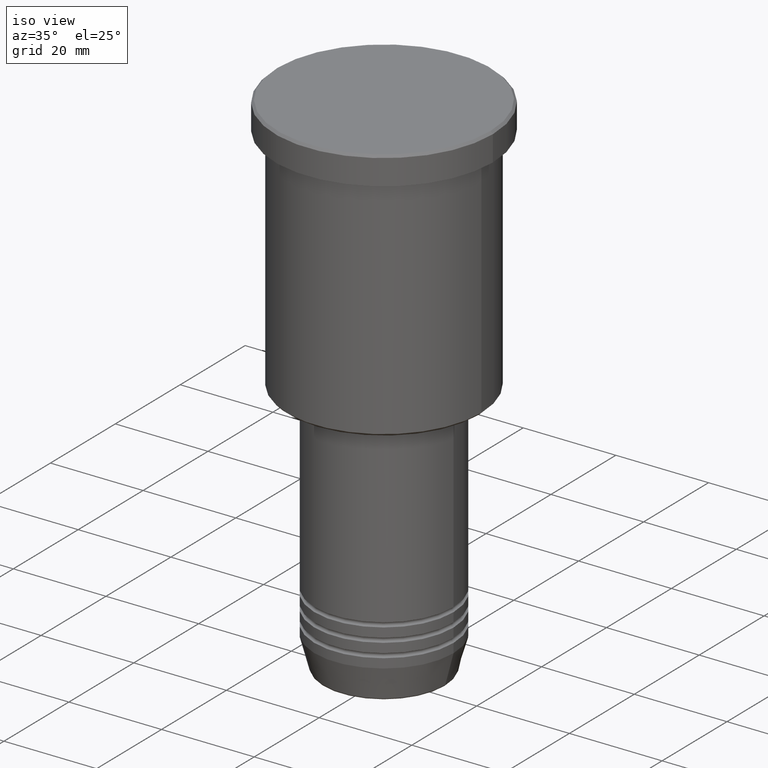
[diagram: clean part render]
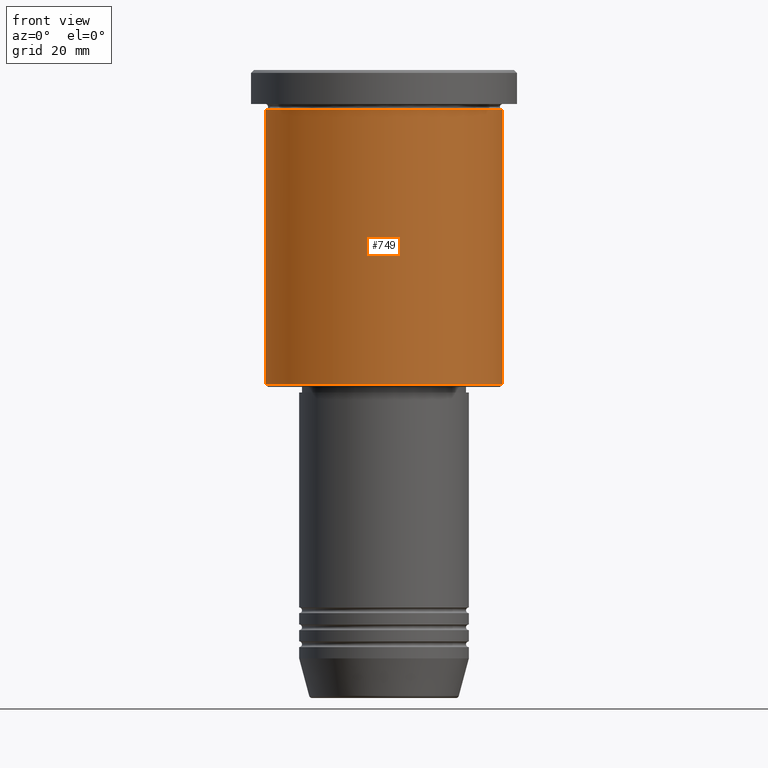
[diagram: tour spotlight — one face highlighted and labeled with its STEP entity id]
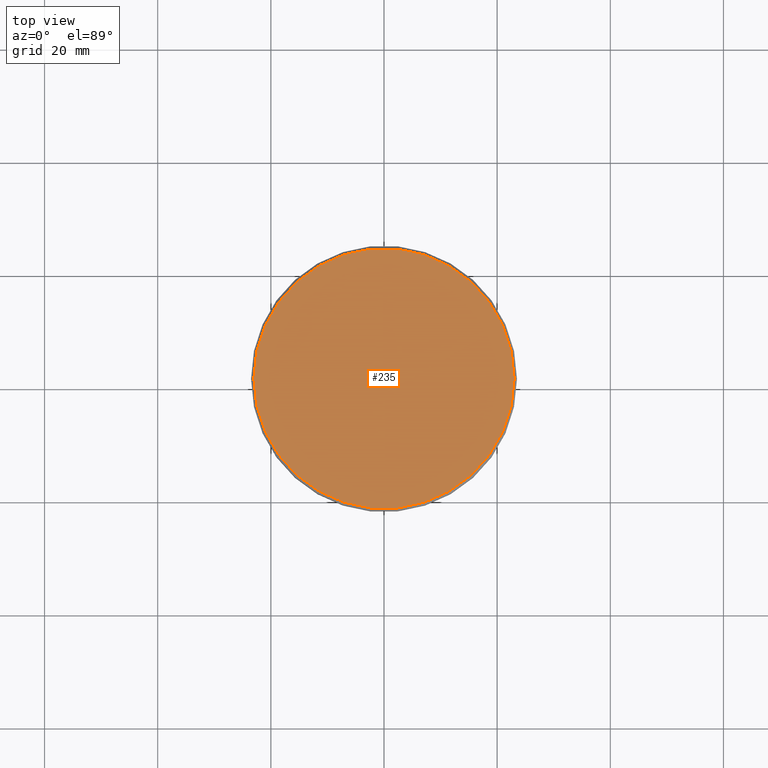
[diagram: tour spotlight — one face highlighted and labeled with its STEP entity id]
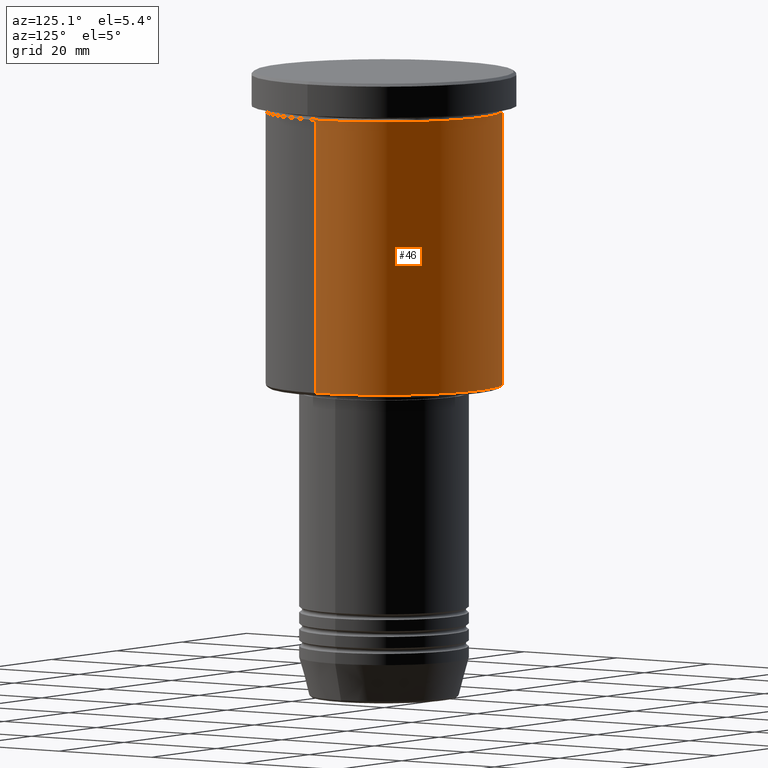
[diagram: tour spotlight — one face highlighted and labeled with its STEP entity id]
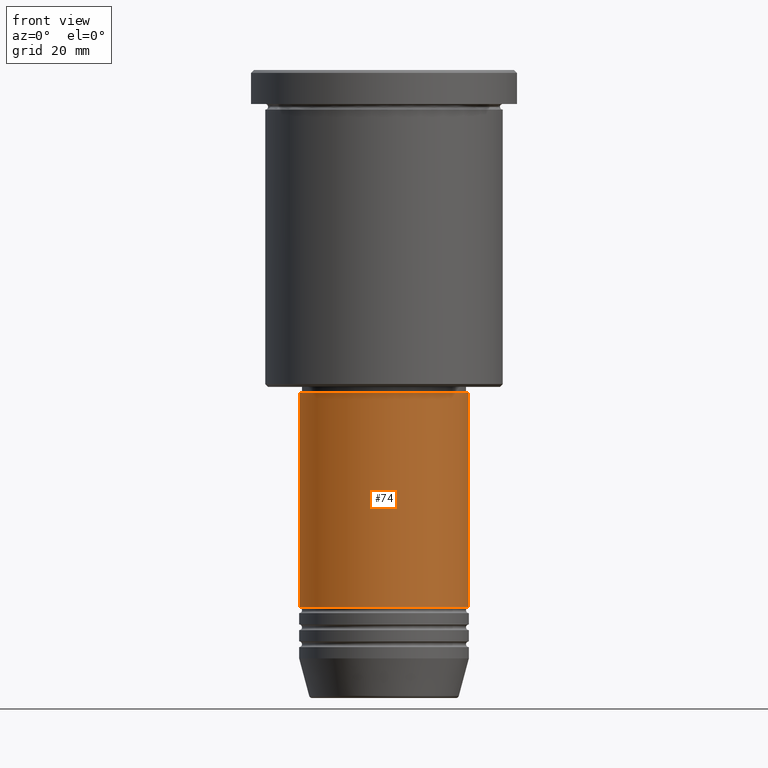
[diagram: tour spotlight — one face highlighted and labeled with its STEP entity id]
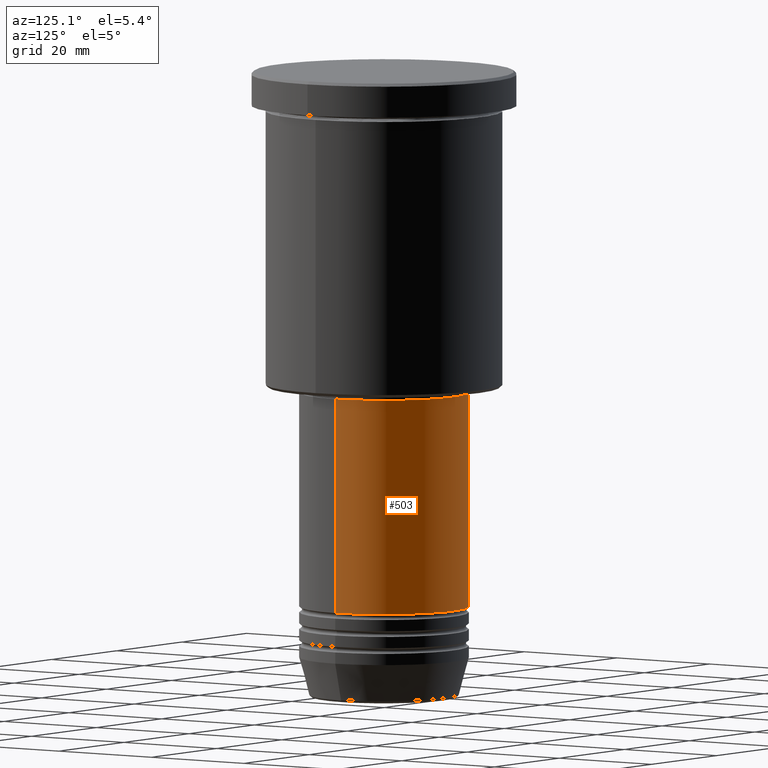
[diagram: tour spotlight — one face highlighted and labeled with its STEP entity id]
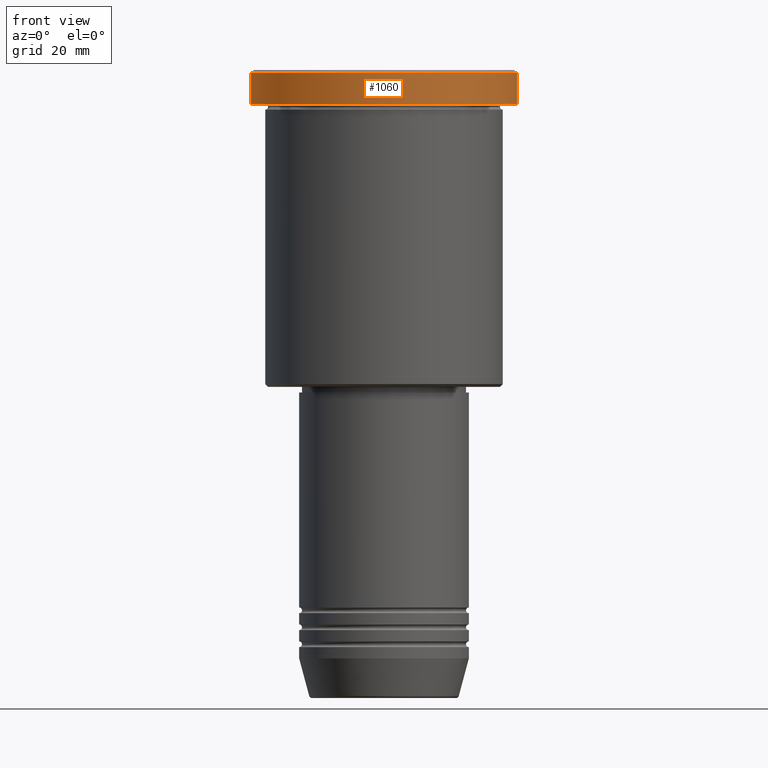
[diagram: tour spotlight — one face highlighted and labeled with its STEP entity id]
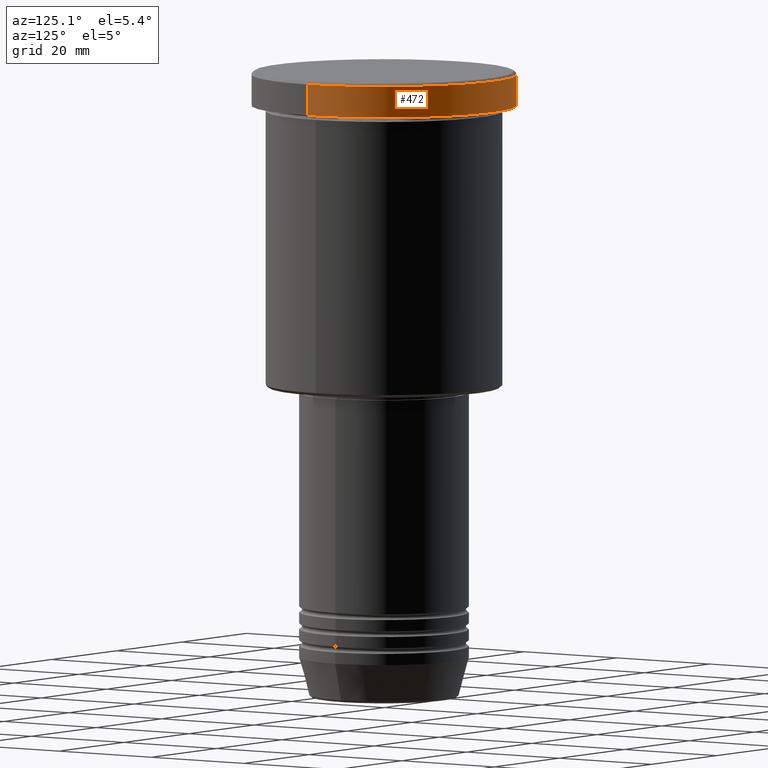
[diagram: tour spotlight — one face highlighted and labeled with its STEP entity id]
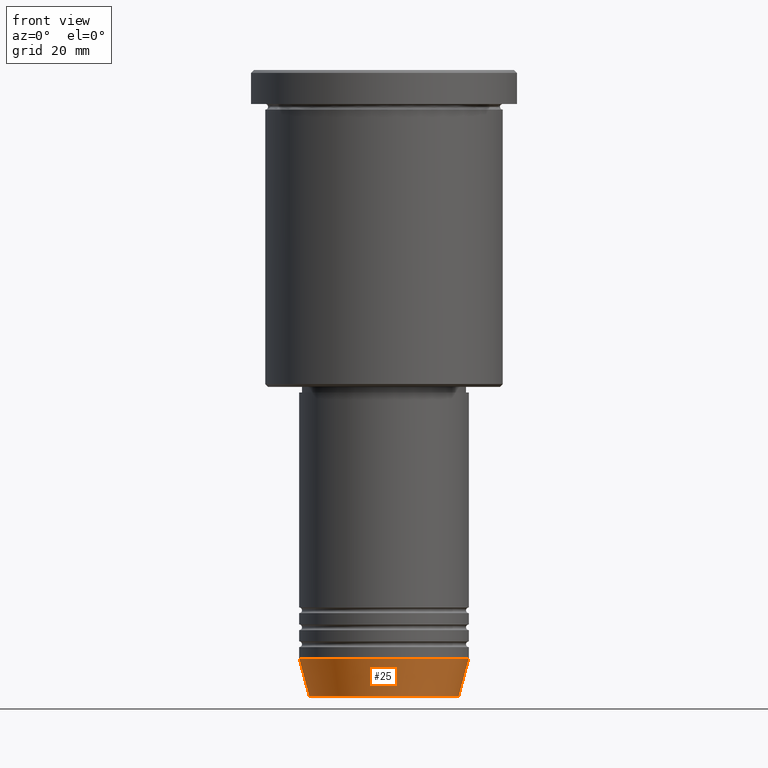
[diagram: tour spotlight — one face highlighted and labeled with its STEP entity id]
A machine part: a face-by-face anatomy tour. The part has 43 B-rep faces; the first image is the clean iso view, then the 8 largest visible faces are spotlighted one at a time (largest first), each with its STEP entity span.

Face 1 — front view, entity #749. In plain terms, the highlighted cylindrical surface (partial cylindrical patch) has radius 21 mm, axis along (-0, -0, 1).
Definition (entity closure, byte-faithful):
#26 = CARTESIAN_POINT ( 'NONE',  ( -21.00000000000000000, 2.571758278209441661E-15, -55.50000000000002132 ) ) ;
#73 = CARTESIAN_POINT ( 'NONE',  ( 21.00000000000000000, 0.000000000000000000, 0.000000000000000000 ) ) ;
#86 = DIRECTION ( 'NONE',  ( -0.000000000000000000, -0.000000000000000000, 1.000000000000000000 ) ) ;
#146 = FACE_OUTER_BOUND ( 'NONE', #989, .T. ) ;
#152 = CARTESIAN_POINT ( 'NONE',  ( 0.000000000000000000, 0.000000000000000000, 0.000000000000000000 ) ) ;
#160 = DIRECTION ( 'NONE',  ( -1.000000000000000000, 0.000000000000000000, 0.000000000000000000 ) ) ;
#260 = ORIENTED_EDGE ( 'NONE', *, *, #957, .F. ) ;
#268 = EDGE_CURVE ( 'NONE', #651, #865, #855, .T. ) ;
#279 = CARTESIAN_POINT ( 'NONE',  ( 21.00000000000000000, 0.000000000000000000, -6.999999999999994671 ) ) ;
#285 = AXIS2_PLACEMENT_3D ( 'NONE', #152, #1092, #814 ) ;
#344 = CARTESIAN_POINT ( 'NONE',  ( -21.00000000000000000, 2.571758278209441661E-15, -6.999999999999994671 ) ) ;
#381 = CARTESIAN_POINT ( 'NONE',  ( -21.00000000000000000, 2.571758278209441661E-15, 0.000000000000000000 ) ) ;
#386 = VERTEX_POINT ( 'NONE', #1015 ) ;
#394 = AXIS2_PLACEMENT_3D ( 'NONE', #827, #86, #460 ) ;
#449 = LINE ( 'NONE', #73, #985 ) ;
#450 = ORIENTED_EDGE ( 'NONE', *, *, #1024, .T. ) ;
#460 = DIRECTION ( 'NONE',  ( 1.000000000000000000, 0.000000000000000000, 0.000000000000000000 ) ) ;
#540 = CIRCLE ( 'NONE', #1066, 21.00000000000000000 ) ;
#541 = DIRECTION ( 'NONE',  ( -0.000000000000000000, -0.000000000000000000, 1.000000000000000000 ) ) ;
#614 = EDGE_CURVE ( 'NONE', #1129, #386, #540, .T. ) ;
#632 = ORIENTED_EDGE ( 'NONE', *, *, #614, .T. ) ;
#651 = VERTEX_POINT ( 'NONE', #344 ) ;
#660 = LINE ( 'NONE', #381, #775 ) ;
#703 = CYLINDRICAL_SURFACE ( 'NONE', #285, 21.00000000000000000 ) ;
#749 = ADVANCED_FACE ( 'NONE', ( #146 ), #703, .T. ) ;
#750 = DIRECTION ( 'NONE',  ( -0.000000000000000000, -0.000000000000000000, 1.000000000000000000 ) ) ;
#775 = VECTOR ( 'NONE', #750, 1000.000000000000000 ) ;
#810 = ORIENTED_EDGE ( 'NONE', *, *, #268, .F. ) ;
#814 = DIRECTION ( 'NONE',  ( 1.000000000000000000, 0.000000000000000000, 0.000000000000000000 ) ) ;
#827 = CARTESIAN_POINT ( 'NONE',  ( 0.000000000000000000, 0.000000000000000000, -6.999999999999994671 ) ) ;
#855 = CIRCLE ( 'NONE', #394, 21.00000000000000000 ) ;
#865 = VERTEX_POINT ( 'NONE', #279 ) ;
#913 = DIRECTION ( 'NONE',  ( -0.000000000000000000, -0.000000000000000000, 1.000000000000000000 ) ) ;
#957 = EDGE_CURVE ( 'NONE', #1129, #651, #660, .T. ) ;
#985 = VECTOR ( 'NONE', #913, 1000.000000000000000 ) ;
#989 = EDGE_LOOP ( 'NONE', ( #260, #632, #450, #810 ) ) ;
#1015 = CARTESIAN_POINT ( 'NONE',  ( 21.00000000000000000, 0.000000000000000000, -55.50000000000002132 ) ) ;
#1024 = EDGE_CURVE ( 'NONE', #386, #865, #449, .T. ) ;
#1066 = AXIS2_PLACEMENT_3D ( 'NONE', #1087, #541, #160 ) ;
#1087 = CARTESIAN_POINT ( 'NONE',  ( 0.000000000000000000, 0.000000000000000000, -55.50000000000002132 ) ) ;
#1092 = DIRECTION ( 'NONE',  ( -0.000000000000000000, -0.000000000000000000, 1.000000000000000000 ) ) ;
#1129 = VERTEX_POINT ( 'NONE', #26 ) ;

Face 2 — top view, entity #235. In plain terms, the highlighted planar face has unit normal (0, -0, 1).
Definition (entity closure, byte-faithful):
#60 = VERTEX_POINT ( 'NONE', #988 ) ;
#140 = EDGE_CURVE ( 'NONE', #186, #60, #832, .T. ) ;
#148 = AXIS2_PLACEMENT_3D ( 'NONE', #963, #870, #784 ) ;
#186 = VERTEX_POINT ( 'NONE', #484 ) ;
#188 = DIRECTION ( 'NONE',  ( 1.000000000000000000, 0.000000000000000000, 0.000000000000000000 ) ) ;
#202 = AXIS2_PLACEMENT_3D ( 'NONE', #657, #999, #188 ) ;
#227 = DIRECTION ( 'NONE',  ( 1.000000000000000000, 0.000000000000000000, 0.000000000000000000 ) ) ;
#235 = ADVANCED_FACE ( 'NONE', ( #562 ), #654, .T. ) ;
#337 = ORIENTED_EDGE ( 'NONE', *, *, #786, .T. ) ;
#484 = CARTESIAN_POINT ( 'NONE',  ( -23.00000000000001066, 0.000000000000000000, 0.000000000000000000 ) ) ;
#562 = FACE_OUTER_BOUND ( 'NONE', #785, .T. ) ;
#654 = PLANE ( 'NONE',  #202 ) ;
#657 = CARTESIAN_POINT ( 'NONE',  ( 0.000000000000000000, 0.000000000000000000, 0.000000000000000000 ) ) ;
#713 = ORIENTED_EDGE ( 'NONE', *, *, #140, .T. ) ;
#742 = AXIS2_PLACEMENT_3D ( 'NONE', #906, #1044, #227 ) ;
#780 = CIRCLE ( 'NONE', #742, 23.00000000000001066 ) ;
#784 = DIRECTION ( 'NONE',  ( 1.000000000000000000, 0.000000000000000000, 0.000000000000000000 ) ) ;
#785 = EDGE_LOOP ( 'NONE', ( #713, #337 ) ) ;
#786 = EDGE_CURVE ( 'NONE', #60, #186, #780, .T. ) ;
#832 = CIRCLE ( 'NONE', #148, 23.00000000000001066 ) ;
#870 = DIRECTION ( 'NONE',  ( -0.000000000000000000, -0.000000000000000000, 1.000000000000000000 ) ) ;
#906 = CARTESIAN_POINT ( 'NONE',  ( 0.000000000000000000, 0.000000000000000000, 0.000000000000000000 ) ) ;
#963 = CARTESIAN_POINT ( 'NONE',  ( 0.000000000000000000, 0.000000000000000000, 0.000000000000000000 ) ) ;
#988 = CARTESIAN_POINT ( 'NONE',  ( 23.00000000000001066, 2.847303808017596928E-15, 0.000000000000000000 ) ) ;
#999 = DIRECTION ( 'NONE',  ( 0.000000000000000000, -0.000000000000000000, 1.000000000000000000 ) ) ;
#1044 = DIRECTION ( 'NONE',  ( -0.000000000000000000, -0.000000000000000000, 1.000000000000000000 ) ) ;

Face 3 — auxiliary view, entity #46. In plain terms, the highlighted cylindrical surface (partial cylindrical patch) has radius 21 mm, axis along (-0, -0, 1).
Definition (entity closure, byte-faithful):
#26 = CARTESIAN_POINT ( 'NONE',  ( -21.00000000000000000, 2.571758278209441661E-15, -55.50000000000002132 ) ) ;
#46 = ADVANCED_FACE ( 'NONE', ( #943 ), #398, .T. ) ;
#73 = CARTESIAN_POINT ( 'NONE',  ( 21.00000000000000000, 0.000000000000000000, 0.000000000000000000 ) ) ;
#167 = CARTESIAN_POINT ( 'NONE',  ( 0.000000000000000000, 0.000000000000000000, -55.50000000000002132 ) ) ;
#175 = DIRECTION ( 'NONE',  ( -0.000000000000000000, -0.000000000000000000, 1.000000000000000000 ) ) ;
#201 = AXIS2_PLACEMENT_3D ( 'NONE', #167, #1093, #995 ) ;
#226 = ORIENTED_EDGE ( 'NONE', *, *, #1045, .T. ) ;
#231 = ORIENTED_EDGE ( 'NONE', *, *, #1024, .F. ) ;
#279 = CARTESIAN_POINT ( 'NONE',  ( 21.00000000000000000, 0.000000000000000000, -6.999999999999994671 ) ) ;
#344 = CARTESIAN_POINT ( 'NONE',  ( -21.00000000000000000, 2.571758278209441661E-15, -6.999999999999994671 ) ) ;
#363 = DIRECTION ( 'NONE',  ( 1.000000000000000000, 0.000000000000000000, 0.000000000000000000 ) ) ;
#381 = CARTESIAN_POINT ( 'NONE',  ( -21.00000000000000000, 2.571758278209441661E-15, 0.000000000000000000 ) ) ;
#386 = VERTEX_POINT ( 'NONE', #1015 ) ;
#392 = CIRCLE ( 'NONE', #889, 21.00000000000000000 ) ;
#398 = CYLINDRICAL_SURFACE ( 'NONE', #492, 21.00000000000000000 ) ;
#449 = LINE ( 'NONE', #73, #985 ) ;
#473 = CIRCLE ( 'NONE', #201, 21.00000000000000000 ) ;
#492 = AXIS2_PLACEMENT_3D ( 'NONE', #552, #175, #363 ) ;
#521 = EDGE_LOOP ( 'NONE', ( #226, #615, #1111, #231 ) ) ;
#552 = CARTESIAN_POINT ( 'NONE',  ( 0.000000000000000000, 0.000000000000000000, 0.000000000000000000 ) ) ;
#615 = ORIENTED_EDGE ( 'NONE', *, *, #957, .T. ) ;
#651 = VERTEX_POINT ( 'NONE', #344 ) ;
#660 = LINE ( 'NONE', #381, #775 ) ;
#750 = DIRECTION ( 'NONE',  ( -0.000000000000000000, -0.000000000000000000, 1.000000000000000000 ) ) ;
#775 = VECTOR ( 'NONE', #750, 1000.000000000000000 ) ;
#859 = DIRECTION ( 'NONE',  ( 1.000000000000000000, 0.000000000000000000, 0.000000000000000000 ) ) ;
#865 = VERTEX_POINT ( 'NONE', #279 ) ;
#889 = AXIS2_PLACEMENT_3D ( 'NONE', #1030, #1110, #859 ) ;
#913 = DIRECTION ( 'NONE',  ( -0.000000000000000000, -0.000000000000000000, 1.000000000000000000 ) ) ;
#943 = FACE_OUTER_BOUND ( 'NONE', #521, .T. ) ;
#957 = EDGE_CURVE ( 'NONE', #1129, #651, #660, .T. ) ;
#985 = VECTOR ( 'NONE', #913, 1000.000000000000000 ) ;
#995 = DIRECTION ( 'NONE',  ( -1.000000000000000000, 0.000000000000000000, 0.000000000000000000 ) ) ;
#1015 = CARTESIAN_POINT ( 'NONE',  ( 21.00000000000000000, 0.000000000000000000, -55.50000000000002132 ) ) ;
#1024 = EDGE_CURVE ( 'NONE', #386, #865, #449, .T. ) ;
#1030 = CARTESIAN_POINT ( 'NONE',  ( 0.000000000000000000, 0.000000000000000000, -6.999999999999994671 ) ) ;
#1045 = EDGE_CURVE ( 'NONE', #386, #1129, #473, .T. ) ;
#1093 = DIRECTION ( 'NONE',  ( -0.000000000000000000, -0.000000000000000000, 1.000000000000000000 ) ) ;
#1110 = DIRECTION ( 'NONE',  ( -0.000000000000000000, -0.000000000000000000, 1.000000000000000000 ) ) ;
#1111 = ORIENTED_EDGE ( 'NONE', *, *, #1131, .F. ) ;
#1129 = VERTEX_POINT ( 'NONE', #26 ) ;
#1131 = EDGE_CURVE ( 'NONE', #865, #651, #392, .T. ) ;

Face 4 — front view, entity #74. In plain terms, the highlighted cylindrical surface (partial cylindrical patch) has radius 15 mm, axis along (-0, -0, 1).
Definition (entity closure, byte-faithful):
#7 = EDGE_CURVE ( 'NONE', #766, #1078, #1115, .T. ) ;
#74 = ADVANCED_FACE ( 'NONE', ( #809 ), #745, .T. ) ;
#82 = VERTEX_POINT ( 'NONE', #1159 ) ;
#124 = EDGE_CURVE ( 'NONE', #163, #82, #177, .T. ) ;
#162 = DIRECTION ( 'NONE',  ( -0.000000000000000000, -0.000000000000000000, 1.000000000000000000 ) ) ;
#163 = VERTEX_POINT ( 'NONE', #440 ) ;
#177 = LINE ( 'NONE', #243, #1039 ) ;
#181 = CARTESIAN_POINT ( 'NONE',  ( 15.00000000000000000, 0.000000000000000000, -57.00000000000000000 ) ) ;
#243 = CARTESIAN_POINT ( 'NONE',  ( -15.00000000000000000, 1.836970198721029589E-15, 0.000000000000000000 ) ) ;
#294 = CARTESIAN_POINT ( 'NONE',  ( 15.00000000000000000, 0.000000000000000000, 0.000000000000000000 ) ) ;
#371 = ORIENTED_EDGE ( 'NONE', *, *, #468, .F. ) ;
#377 = EDGE_LOOP ( 'NONE', ( #802, #405, #617, #371 ) ) ;
#405 = ORIENTED_EDGE ( 'NONE', *, *, #692, .T. ) ;
#440 = CARTESIAN_POINT ( 'NONE',  ( -15.00000000000000000, 1.836970198721029589E-15, -94.99999999999997158 ) ) ;
#468 = EDGE_CURVE ( 'NONE', #82, #1078, #835, .T. ) ;
#479 = DIRECTION ( 'NONE',  ( 1.000000000000000000, 0.000000000000000000, 0.000000000000000000 ) ) ;
#526 = DIRECTION ( 'NONE',  ( 1.000000000000000000, 0.000000000000000000, 0.000000000000000000 ) ) ;
#588 = DIRECTION ( 'NONE',  ( 1.000000000000000000, 0.000000000000000000, 0.000000000000000000 ) ) ;
#607 = DIRECTION ( 'NONE',  ( -0.000000000000000000, -0.000000000000000000, 1.000000000000000000 ) ) ;
#613 = CARTESIAN_POINT ( 'NONE',  ( 0.000000000000000000, 0.000000000000000000, 0.000000000000000000 ) ) ;
#617 = ORIENTED_EDGE ( 'NONE', *, *, #7, .T. ) ;
#644 = CARTESIAN_POINT ( 'NONE',  ( 0.000000000000000000, 0.000000000000000000, -94.99999999999997158 ) ) ;
#668 = DIRECTION ( 'NONE',  ( -0.000000000000000000, -0.000000000000000000, 1.000000000000000000 ) ) ;
#692 = EDGE_CURVE ( 'NONE', #163, #766, #891, .T. ) ;
#723 = CARTESIAN_POINT ( 'NONE',  ( 15.00000000000000000, 0.000000000000000000, -94.99999999999997158 ) ) ;
#745 = CYLINDRICAL_SURFACE ( 'NONE', #965, 15.00000000000000000 ) ;
#766 = VERTEX_POINT ( 'NONE', #723 ) ;
#774 = CARTESIAN_POINT ( 'NONE',  ( 0.000000000000000000, 0.000000000000000000, -57.00000000000000000 ) ) ;
#802 = ORIENTED_EDGE ( 'NONE', *, *, #124, .F. ) ;
#809 = FACE_OUTER_BOUND ( 'NONE', #377, .T. ) ;
#820 = AXIS2_PLACEMENT_3D ( 'NONE', #644, #918, #479 ) ;
#835 = CIRCLE ( 'NONE', #983, 15.00000000000000000 ) ;
#891 = CIRCLE ( 'NONE', #820, 15.00000000000000000 ) ;
#918 = DIRECTION ( 'NONE',  ( -0.000000000000000000, -0.000000000000000000, 1.000000000000000000 ) ) ;
#965 = AXIS2_PLACEMENT_3D ( 'NONE', #613, #162, #526 ) ;
#983 = AXIS2_PLACEMENT_3D ( 'NONE', #774, #1037, #588 ) ;
#1037 = DIRECTION ( 'NONE',  ( -0.000000000000000000, -0.000000000000000000, 1.000000000000000000 ) ) ;
#1039 = VECTOR ( 'NONE', #607, 1000.000000000000000 ) ;
#1078 = VERTEX_POINT ( 'NONE', #181 ) ;
#1115 = LINE ( 'NONE', #294, #1181 ) ;
#1159 = CARTESIAN_POINT ( 'NONE',  ( -15.00000000000000000, 1.836970198721029589E-15, -57.00000000000000000 ) ) ;
#1181 = VECTOR ( 'NONE', #668, 1000.000000000000000 ) ;

Face 5 — auxiliary view, entity #503. In plain terms, the highlighted cylindrical surface (partial cylindrical patch) has radius 15 mm, axis along (-0, -0, 1).
Definition (entity closure, byte-faithful):
#7 = EDGE_CURVE ( 'NONE', #766, #1078, #1115, .T. ) ;
#28 = DIRECTION ( 'NONE',  ( 1.000000000000000000, 0.000000000000000000, 0.000000000000000000 ) ) ;
#68 = DIRECTION ( 'NONE',  ( 1.000000000000000000, 0.000000000000000000, 0.000000000000000000 ) ) ;
#82 = VERTEX_POINT ( 'NONE', #1159 ) ;
#124 = EDGE_CURVE ( 'NONE', #163, #82, #177, .T. ) ;
#132 = CARTESIAN_POINT ( 'NONE',  ( 0.000000000000000000, 0.000000000000000000, 0.000000000000000000 ) ) ;
#150 = EDGE_CURVE ( 'NONE', #1078, #82, #756, .T. ) ;
#155 = DIRECTION ( 'NONE',  ( -0.000000000000000000, -0.000000000000000000, 1.000000000000000000 ) ) ;
#163 = VERTEX_POINT ( 'NONE', #440 ) ;
#165 = CARTESIAN_POINT ( 'NONE',  ( 0.000000000000000000, 0.000000000000000000, -94.99999999999997158 ) ) ;
#177 = LINE ( 'NONE', #243, #1039 ) ;
#181 = CARTESIAN_POINT ( 'NONE',  ( 15.00000000000000000, 0.000000000000000000, -57.00000000000000000 ) ) ;
#191 = AXIS2_PLACEMENT_3D ( 'NONE', #165, #1012, #564 ) ;
#217 = FACE_OUTER_BOUND ( 'NONE', #980, .T. ) ;
#243 = CARTESIAN_POINT ( 'NONE',  ( -15.00000000000000000, 1.836970198721029589E-15, 0.000000000000000000 ) ) ;
#294 = CARTESIAN_POINT ( 'NONE',  ( 15.00000000000000000, 0.000000000000000000, 0.000000000000000000 ) ) ;
#311 = ORIENTED_EDGE ( 'NONE', *, *, #676, .T. ) ;
#328 = CARTESIAN_POINT ( 'NONE',  ( 0.000000000000000000, 0.000000000000000000, -57.00000000000000000 ) ) ;
#440 = CARTESIAN_POINT ( 'NONE',  ( -15.00000000000000000, 1.836970198721029589E-15, -94.99999999999997158 ) ) ;
#503 = ADVANCED_FACE ( 'NONE', ( #217 ), #950, .T. ) ;
#564 = DIRECTION ( 'NONE',  ( 1.000000000000000000, 0.000000000000000000, 0.000000000000000000 ) ) ;
#607 = DIRECTION ( 'NONE',  ( -0.000000000000000000, -0.000000000000000000, 1.000000000000000000 ) ) ;
#609 = AXIS2_PLACEMENT_3D ( 'NONE', #328, #155, #68 ) ;
#652 = CIRCLE ( 'NONE', #191, 15.00000000000000000 ) ;
#656 = ORIENTED_EDGE ( 'NONE', *, *, #124, .T. ) ;
#668 = DIRECTION ( 'NONE',  ( -0.000000000000000000, -0.000000000000000000, 1.000000000000000000 ) ) ;
#671 = AXIS2_PLACEMENT_3D ( 'NONE', #132, #864, #28 ) ;
#676 = EDGE_CURVE ( 'NONE', #766, #163, #652, .T. ) ;
#711 = ORIENTED_EDGE ( 'NONE', *, *, #7, .F. ) ;
#723 = CARTESIAN_POINT ( 'NONE',  ( 15.00000000000000000, 0.000000000000000000, -94.99999999999997158 ) ) ;
#756 = CIRCLE ( 'NONE', #609, 15.00000000000000000 ) ;
#766 = VERTEX_POINT ( 'NONE', #723 ) ;
#864 = DIRECTION ( 'NONE',  ( -0.000000000000000000, -0.000000000000000000, 1.000000000000000000 ) ) ;
#950 = CYLINDRICAL_SURFACE ( 'NONE', #671, 15.00000000000000000 ) ;
#980 = EDGE_LOOP ( 'NONE', ( #311, #656, #1075, #711 ) ) ;
#1012 = DIRECTION ( 'NONE',  ( -0.000000000000000000, -0.000000000000000000, 1.000000000000000000 ) ) ;
#1039 = VECTOR ( 'NONE', #607, 1000.000000000000000 ) ;
#1075 = ORIENTED_EDGE ( 'NONE', *, *, #150, .F. ) ;
#1078 = VERTEX_POINT ( 'NONE', #181 ) ;
#1115 = LINE ( 'NONE', #294, #1181 ) ;
#1159 = CARTESIAN_POINT ( 'NONE',  ( -15.00000000000000000, 1.836970198721029589E-15, -57.00000000000000000 ) ) ;
#1181 = VECTOR ( 'NONE', #668, 1000.000000000000000 ) ;

Face 6 — front view, entity #1060. In plain terms, the highlighted cylindrical surface (partial cylindrical patch) has radius 23.5 mm, axis along (-0, -0, 1).
Definition (entity closure, byte-faithful):
#9 = VERTEX_POINT ( 'NONE', #1019 ) ;
#79 = ORIENTED_EDGE ( 'NONE', *, *, #592, .T. ) ;
#104 = ORIENTED_EDGE ( 'NONE', *, *, #569, .F. ) ;
#131 = DIRECTION ( 'NONE',  ( 1.000000000000000000, 0.000000000000000000, 0.000000000000000000 ) ) ;
#153 = CARTESIAN_POINT ( 'NONE',  ( -23.50000000000000000, 2.877919977996280320E-15, 0.000000000000000000 ) ) ;
#174 = FACE_OUTER_BOUND ( 'NONE', #844, .T. ) ;
#176 = ORIENTED_EDGE ( 'NONE', *, *, #871, .T. ) ;
#210 = VERTEX_POINT ( 'NONE', #992 ) ;
#258 = DIRECTION ( 'NONE',  ( 1.000000000000000000, 0.000000000000000000, 0.000000000000000000 ) ) ;
#263 = CIRCLE ( 'NONE', #670, 23.50000000000000000 ) ;
#307 = CARTESIAN_POINT ( 'NONE',  ( 23.50000000000000000, 0.000000000000000000, 0.000000000000000000 ) ) ;
#329 = VERTEX_POINT ( 'NONE', #379 ) ;
#335 = EDGE_CURVE ( 'NONE', #9, #425, #263, .T. ) ;
#379 = CARTESIAN_POINT ( 'NONE',  ( 23.50000000000000000, 0.000000000000000000, -5.999999999999994671 ) ) ;
#424 = CARTESIAN_POINT ( 'NONE',  ( 0.000000000000000000, 0.000000000000000000, -5.999999999999994671 ) ) ;
#425 = VERTEX_POINT ( 'NONE', #500 ) ;
#485 = DIRECTION ( 'NONE',  ( -0.000000000000000000, -0.000000000000000000, 1.000000000000000000 ) ) ;
#491 = CARTESIAN_POINT ( 'NONE',  ( 0.000000000000000000, 0.000000000000000000, -0.4999999999999865663 ) ) ;
#500 = CARTESIAN_POINT ( 'NONE',  ( -23.50000000000000000, 2.877919977996280320E-15, -0.4999999999999865663 ) ) ;
#517 = CIRCLE ( 'NONE', #684, 23.50000000000000000 ) ;
#543 = VECTOR ( 'NONE', #485, 1000.000000000000000 ) ;
#546 = CYLINDRICAL_SURFACE ( 'NONE', #1134, 23.50000000000000000 ) ;
#569 = EDGE_CURVE ( 'NONE', #210, #425, #878, .T. ) ;
#592 = EDGE_CURVE ( 'NONE', #210, #329, #517, .T. ) ;
#649 = LINE ( 'NONE', #307, #543 ) ;
#670 = AXIS2_PLACEMENT_3D ( 'NONE', #491, #773, #131 ) ;
#684 = AXIS2_PLACEMENT_3D ( 'NONE', #424, #1137, #1130 ) ;
#773 = DIRECTION ( 'NONE',  ( 0.000000000000000000, 0.000000000000000000, -1.000000000000000000 ) ) ;
#792 = DIRECTION ( 'NONE',  ( -0.000000000000000000, -0.000000000000000000, 1.000000000000000000 ) ) ;
#803 = DIRECTION ( 'NONE',  ( -0.000000000000000000, -0.000000000000000000, 1.000000000000000000 ) ) ;
#844 = EDGE_LOOP ( 'NONE', ( #104, #79, #176, #1118 ) ) ;
#871 = EDGE_CURVE ( 'NONE', #329, #9, #649, .T. ) ;
#878 = LINE ( 'NONE', #153, #984 ) ;
#984 = VECTOR ( 'NONE', #792, 1000.000000000000000 ) ;
#992 = CARTESIAN_POINT ( 'NONE',  ( -23.50000000000000000, 2.877919977996280320E-15, -5.999999999999994671 ) ) ;
#1019 = CARTESIAN_POINT ( 'NONE',  ( 23.50000000000000000, 0.000000000000000000, -0.4999999999999865663 ) ) ;
#1060 = ADVANCED_FACE ( 'NONE', ( #174 ), #546, .T. ) ;
#1118 = ORIENTED_EDGE ( 'NONE', *, *, #335, .T. ) ;
#1130 = DIRECTION ( 'NONE',  ( 1.000000000000000000, 0.000000000000000000, 0.000000000000000000 ) ) ;
#1134 = AXIS2_PLACEMENT_3D ( 'NONE', #1170, #803, #258 ) ;
#1137 = DIRECTION ( 'NONE',  ( -0.000000000000000000, -0.000000000000000000, 1.000000000000000000 ) ) ;
#1170 = CARTESIAN_POINT ( 'NONE',  ( 0.000000000000000000, 0.000000000000000000, 0.000000000000000000 ) ) ;

Face 7 — auxiliary view, entity #472. In plain terms, the highlighted cylindrical surface (partial cylindrical patch) has radius 23.5 mm, axis along (-0, -0, 1).
Definition (entity closure, byte-faithful):
#9 = VERTEX_POINT ( 'NONE', #1019 ) ;
#48 = DIRECTION ( 'NONE',  ( 1.000000000000000000, 0.000000000000000000, 0.000000000000000000 ) ) ;
#106 = CIRCLE ( 'NONE', #111, 23.50000000000000000 ) ;
#109 = AXIS2_PLACEMENT_3D ( 'NONE', #320, #487, #939 ) ;
#111 = AXIS2_PLACEMENT_3D ( 'NONE', #961, #790, #48 ) ;
#153 = CARTESIAN_POINT ( 'NONE',  ( -23.50000000000000000, 2.877919977996280320E-15, 0.000000000000000000 ) ) ;
#170 = EDGE_LOOP ( 'NONE', ( #941, #842, #1033, #351 ) ) ;
#210 = VERTEX_POINT ( 'NONE', #992 ) ;
#287 = DIRECTION ( 'NONE',  ( 1.000000000000000000, 0.000000000000000000, 0.000000000000000000 ) ) ;
#303 = CARTESIAN_POINT ( 'NONE',  ( 0.000000000000000000, 0.000000000000000000, -5.999999999999994671 ) ) ;
#307 = CARTESIAN_POINT ( 'NONE',  ( 23.50000000000000000, 0.000000000000000000, 0.000000000000000000 ) ) ;
#320 = CARTESIAN_POINT ( 'NONE',  ( 0.000000000000000000, 0.000000000000000000, 0.000000000000000000 ) ) ;
#329 = VERTEX_POINT ( 'NONE', #379 ) ;
#351 = ORIENTED_EDGE ( 'NONE', *, *, #871, .F. ) ;
#372 = AXIS2_PLACEMENT_3D ( 'NONE', #303, #936, #287 ) ;
#379 = CARTESIAN_POINT ( 'NONE',  ( 23.50000000000000000, 0.000000000000000000, -5.999999999999994671 ) ) ;
#425 = VERTEX_POINT ( 'NONE', #500 ) ;
#472 = ADVANCED_FACE ( 'NONE', ( #959 ), #1139, .T. ) ;
#485 = DIRECTION ( 'NONE',  ( -0.000000000000000000, -0.000000000000000000, 1.000000000000000000 ) ) ;
#487 = DIRECTION ( 'NONE',  ( -0.000000000000000000, -0.000000000000000000, 1.000000000000000000 ) ) ;
#500 = CARTESIAN_POINT ( 'NONE',  ( -23.50000000000000000, 2.877919977996280320E-15, -0.4999999999999865663 ) ) ;
#543 = VECTOR ( 'NONE', #485, 1000.000000000000000 ) ;
#569 = EDGE_CURVE ( 'NONE', #210, #425, #878, .T. ) ;
#649 = LINE ( 'NONE', #307, #543 ) ;
#790 = DIRECTION ( 'NONE',  ( 0.000000000000000000, 0.000000000000000000, -1.000000000000000000 ) ) ;
#792 = DIRECTION ( 'NONE',  ( -0.000000000000000000, -0.000000000000000000, 1.000000000000000000 ) ) ;
#842 = ORIENTED_EDGE ( 'NONE', *, *, #569, .T. ) ;
#871 = EDGE_CURVE ( 'NONE', #329, #9, #649, .T. ) ;
#878 = LINE ( 'NONE', #153, #984 ) ;
#922 = EDGE_CURVE ( 'NONE', #425, #9, #106, .T. ) ;
#936 = DIRECTION ( 'NONE',  ( -0.000000000000000000, -0.000000000000000000, 1.000000000000000000 ) ) ;
#939 = DIRECTION ( 'NONE',  ( 1.000000000000000000, 0.000000000000000000, 0.000000000000000000 ) ) ;
#941 = ORIENTED_EDGE ( 'NONE', *, *, #1148, .T. ) ;
#959 = FACE_OUTER_BOUND ( 'NONE', #170, .T. ) ;
#961 = CARTESIAN_POINT ( 'NONE',  ( 0.000000000000000000, 0.000000000000000000, -0.4999999999999865663 ) ) ;
#984 = VECTOR ( 'NONE', #792, 1000.000000000000000 ) ;
#992 = CARTESIAN_POINT ( 'NONE',  ( -23.50000000000000000, 2.877919977996280320E-15, -5.999999999999994671 ) ) ;
#1019 = CARTESIAN_POINT ( 'NONE',  ( 23.50000000000000000, 0.000000000000000000, -0.4999999999999865663 ) ) ;
#1033 = ORIENTED_EDGE ( 'NONE', *, *, #922, .T. ) ;
#1082 = CIRCLE ( 'NONE', #372, 23.50000000000000000 ) ;
#1139 = CYLINDRICAL_SURFACE ( 'NONE', #109, 23.50000000000000000 ) ;
#1148 = EDGE_CURVE ( 'NONE', #329, #210, #1082, .T. ) ;

Face 8 — front view, entity #25. In plain terms, the highlighted conical surface has half-angle 15 deg.
Definition (entity closure, byte-faithful):
#14 = CARTESIAN_POINT ( 'NONE',  ( -13.22365507213718949, 1.728200442216588386E-15, -110.6294095225512564 ) ) ;
#25 = ADVANCED_FACE ( 'NONE', ( #1026 ), #89, .T. ) ;
#52 = CARTESIAN_POINT ( 'NONE',  ( 0.000000000000000000, 0.000000000000000000, -104.0000000000000142 ) ) ;
#89 = CONICAL_SURFACE ( 'NONE', #393, 15.00000000000000000, 0.2617993877991500740 ) ;
#117 = DIRECTION ( 'NONE',  ( 1.000000000000000000, 0.000000000000000000, 0.000000000000000000 ) ) ;
#149 = CIRCLE ( 'NONE', #203, 13.22365507213718949 ) ;
#193 = VERTEX_POINT ( 'NONE', #867 ) ;
#194 = DIRECTION ( 'NONE',  ( -0.2588190451025213501, 3.169619151431772337E-17, 0.9659258262890680902 ) ) ;
#203 = AXIS2_PLACEMENT_3D ( 'NONE', #1020, #367, #117 ) ;
#207 = CARTESIAN_POINT ( 'NONE',  ( 0.000000000000000000, 0.000000000000000000, -104.0000000000000142 ) ) ;
#218 = CARTESIAN_POINT ( 'NONE',  ( -15.00000000000000000, 1.836970198721029589E-15, -104.0000000000000142 ) ) ;
#304 = EDGE_CURVE ( 'NONE', #879, #830, #465, .T. ) ;
#309 = LINE ( 'NONE', #404, #798 ) ;
#367 = DIRECTION ( 'NONE',  ( -0.000000000000000000, -0.000000000000000000, 1.000000000000000000 ) ) ;
#393 = AXIS2_PLACEMENT_3D ( 'NONE', #207, #1124, #584 ) ;
#404 = CARTESIAN_POINT ( 'NONE',  ( 15.00000000000000000, 0.000000000000000000, -104.0000000000000142 ) ) ;
#465 = LINE ( 'NONE', #822, #738 ) ;
#584 = DIRECTION ( 'NONE',  ( 1.000000000000000000, 0.000000000000000000, 0.000000000000000000 ) ) ;
#604 = EDGE_CURVE ( 'NONE', #830, #193, #740, .T. ) ;
#688 = EDGE_CURVE ( 'NONE', #879, #800, #149, .T. ) ;
#738 = VECTOR ( 'NONE', #194, 1000.000000000000000 ) ;
#740 = CIRCLE ( 'NONE', #1025, 15.00000000000000000 ) ;
#798 = VECTOR ( 'NONE', #1038, 1000.000000000000000 ) ;
#800 = VERTEX_POINT ( 'NONE', #1052 ) ;
#811 = EDGE_LOOP ( 'NONE', ( #884, #966, #920, #1043 ) ) ;
#822 = CARTESIAN_POINT ( 'NONE',  ( -15.00000000000000000, 1.836970198721029589E-15, -104.0000000000000142 ) ) ;
#824 = EDGE_CURVE ( 'NONE', #800, #193, #309, .T. ) ;
#830 = VERTEX_POINT ( 'NONE', #218 ) ;
#867 = CARTESIAN_POINT ( 'NONE',  ( 15.00000000000000000, 0.000000000000000000, -104.0000000000000142 ) ) ;
#879 = VERTEX_POINT ( 'NONE', #14 ) ;
#882 = DIRECTION ( 'NONE',  ( 1.000000000000000000, 0.000000000000000000, 0.000000000000000000 ) ) ;
#884 = ORIENTED_EDGE ( 'NONE', *, *, #304, .F. ) ;
#920 = ORIENTED_EDGE ( 'NONE', *, *, #824, .T. ) ;
#966 = ORIENTED_EDGE ( 'NONE', *, *, #688, .T. ) ;
#1020 = CARTESIAN_POINT ( 'NONE',  ( 0.000000000000000000, 0.000000000000000000, -110.6294095225512564 ) ) ;
#1025 = AXIS2_PLACEMENT_3D ( 'NONE', #52, #1145, #882 ) ;
#1026 = FACE_OUTER_BOUND ( 'NONE', #811, .T. ) ;
#1038 = DIRECTION ( 'NONE',  ( 0.2588190451025213501, 0.000000000000000000, 0.9659258262890680902 ) ) ;
#1043 = ORIENTED_EDGE ( 'NONE', *, *, #604, .F. ) ;
#1052 = CARTESIAN_POINT ( 'NONE',  ( 13.22365507213718949, 0.000000000000000000, -110.6294095225512564 ) ) ;
#1124 = DIRECTION ( 'NONE',  ( -0.000000000000000000, -0.000000000000000000, 1.000000000000000000 ) ) ;
#1145 = DIRECTION ( 'NONE',  ( -0.000000000000000000, -0.000000000000000000, 1.000000000000000000 ) ) ;